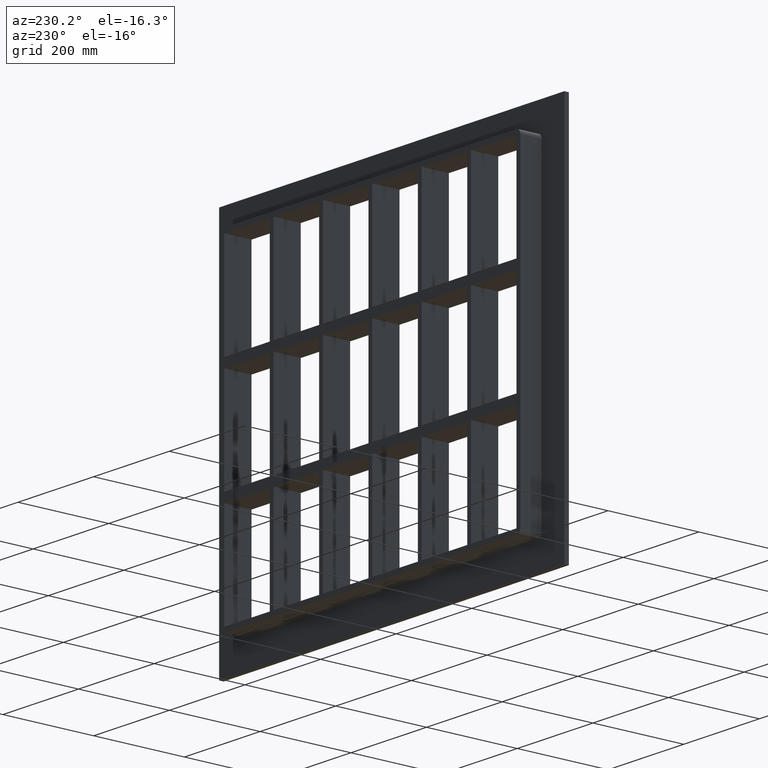
[diagram: clean part render]
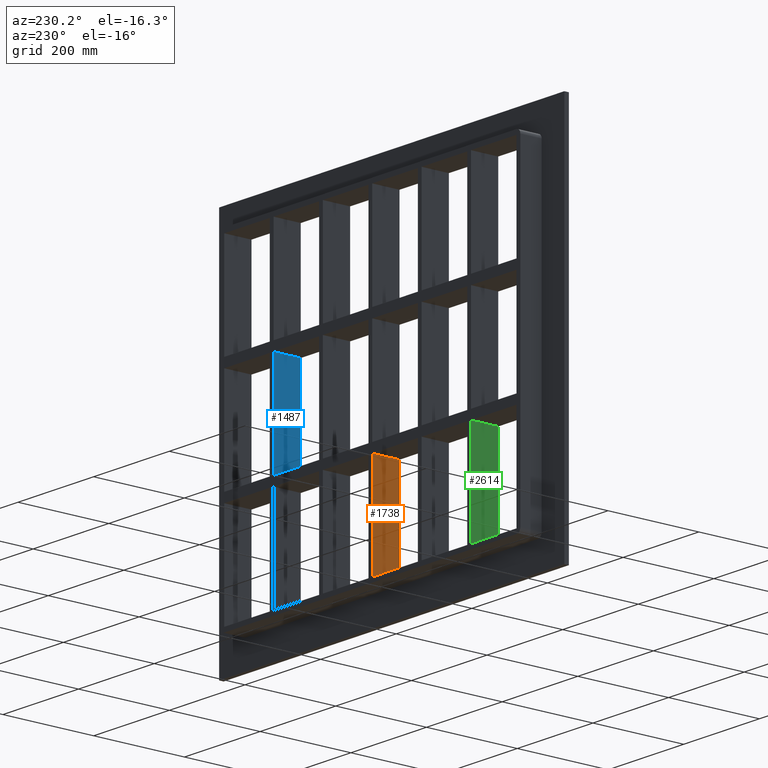
[diagram: same view with three faces highlighted in distinct colors, each labeled with its STEP entity id]
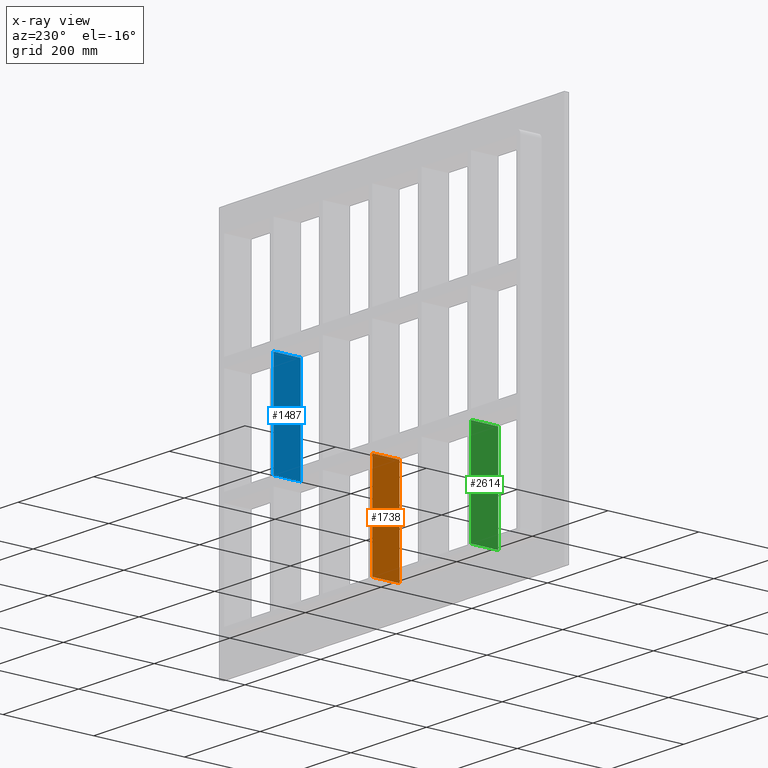
[diagram: x-ray of the same camera — body ghosted, the three highlighted faces saturated]
A machine part, auxiliary view with three faces highlighted in distinct colors.
The next image is the same camera in x-ray (body ghosted, the three faces saturated) — at least one of them is partly hidden behind the body in this view.
Their STEP definitions:

[orange] entity #1738 — the highlighted planar face has unit normal (-1, 0, 0).
#1316=CARTESIAN_POINT('',(-5.00000000000135,57.0,-347.0));
#1317=VERTEX_POINT('',#1316);
#1318=CARTESIAN_POINT('',(-5.000000000001372,57.0,-129.00000000000941));
#1319=VERTEX_POINT('',#1318);
#1320=CARTESIAN_POINT('',(-5.00000000000135,57.0,-347.0));
#1321=DIRECTION('',(0.0,0.0,1.0));
#1322=VECTOR('',#1321,217.99999999999062);
#1323=LINE('',#1320,#1322);
#1324=EDGE_CURVE('',#1317,#1319,#1323,.T.);
#1708=CARTESIAN_POINT('',(-5.00000000000135,-3.0,-347.0));
#1709=DIRECTION('',(-1.0,0.0,0.0));
#1710=DIRECTION('',(0.0,0.0,1.0));
#1711=AXIS2_PLACEMENT_3D('',#1708,#1709,#1710);
#1712=PLANE('',#1711);
#1713=CARTESIAN_POINT('',(-5.000000000001372,-3.0,-129.00000000000941));
#1714=VERTEX_POINT('',#1713);
#1715=CARTESIAN_POINT('',(-5.000000000001361,57.0,-129.00000000000941));
#1716=DIRECTION('',(0.0,-1.0,0.0));
#1717=VECTOR('',#1716,60.0);
#1718=LINE('',#1715,#1717);
#1719=EDGE_CURVE('',#1319,#1714,#1718,.T.);
#1720=ORIENTED_EDGE('',*,*,#1719,.F.);
#1721=ORIENTED_EDGE('',*,*,#1324,.F.);
#1722=CARTESIAN_POINT('',(-5.00000000000135,-3.0,-347.0));
#1723=VERTEX_POINT('',#1722);
#1724=CARTESIAN_POINT('',(-5.00000000000135,-3.0,-347.0));
#1725=DIRECTION('',(0.0,1.0,0.0));
#1726=VECTOR('',#1725,60.000000000000007);
#1727=LINE('',#1724,#1726);
#1728=EDGE_CURVE('',#1723,#1317,#1727,.T.);
#1729=ORIENTED_EDGE('',*,*,#1728,.F.);
#1730=CARTESIAN_POINT('',(-5.00000000000135,-3.0,-347.0));
#1731=DIRECTION('',(0.0,0.0,1.0));
#1732=VECTOR('',#1731,217.99999999999062);
#1733=LINE('',#1730,#1732);
#1734=EDGE_CURVE('',#1723,#1714,#1733,.T.);
#1735=ORIENTED_EDGE('',*,*,#1734,.T.);
#1736=EDGE_LOOP('',(#1720,#1721,#1729,#1735));
#1737=FACE_OUTER_BOUND('',#1736,.T.);
#1738=ADVANCED_FACE('',(#1737),#1712,.T.);

[blue] entity #1487 — the highlighted planar face has unit normal (-1, 0, 0).
#273=CARTESIAN_POINT('',(255.99999999999866,-3.0,108.99999999999061));
#274=VERTEX_POINT('',#273);
#275=CARTESIAN_POINT('',(255.99999999999866,57.0,108.99999999999061));
#276=VERTEX_POINT('',#275);
#277=CARTESIAN_POINT('',(255.99999999999866,-3.0,108.99999999999061));
#278=DIRECTION('',(0.0,1.0,0.0));
#279=VECTOR('',#278,60.0);
#280=LINE('',#277,#279);
#281=EDGE_CURVE('',#274,#276,#280,.T.);
#1157=CARTESIAN_POINT('',(255.99999999999866,57.0,-109.00000000000006));
#1158=VERTEX_POINT('',#1157);
#1165=CARTESIAN_POINT('',(255.99999999999866,57.0,-109.00000000000003));
#1166=DIRECTION('',(0.0,0.0,1.0));
#1167=VECTOR('',#1166,217.99999999999065);
#1168=LINE('',#1165,#1167);
#1169=EDGE_CURVE('',#1158,#276,#1168,.T.);
#1464=CARTESIAN_POINT('',(255.99999999999869,-3.0,-347.0));
#1465=DIRECTION('',(-1.0,0.0,0.0));
#1466=DIRECTION('',(0.0,0.0,1.0));
#1467=AXIS2_PLACEMENT_3D('',#1464,#1465,#1466);
#1468=PLANE('',#1467);
#1469=ORIENTED_EDGE('',*,*,#281,.T.);
#1470=ORIENTED_EDGE('',*,*,#1169,.F.);
#1471=CARTESIAN_POINT('',(255.99999999999866,-3.0,-109.00000000000006));
#1472=VERTEX_POINT('',#1471);
#1473=CARTESIAN_POINT('',(255.99999999999875,-3.0,-109.00000000000006));
#1474=DIRECTION('',(0.0,1.0,0.0));
#1475=VECTOR('',#1474,60.0);
#1476=LINE('',#1473,#1475);
#1477=EDGE_CURVE('',#1472,#1158,#1476,.T.);
#1478=ORIENTED_EDGE('',*,*,#1477,.F.);
#1479=CARTESIAN_POINT('',(255.99999999999866,-3.0,-109.00000000000003));
#1480=DIRECTION('',(0.0,0.0,1.0));
#1481=VECTOR('',#1480,217.99999999999065);
#1482=LINE('',#1479,#1481);
#1483=EDGE_CURVE('',#1472,#274,#1482,.T.);
#1484=ORIENTED_EDGE('',*,*,#1483,.T.);
#1485=EDGE_LOOP('',(#1469,#1470,#1478,#1484));
#1486=FACE_OUTER_BOUND('',#1485,.T.);
#1487=ADVANCED_FACE('',(#1486),#1468,.T.);

[green] entity #2614 — the highlighted planar face has unit normal (-1, 0, 0).
#1258=CARTESIAN_POINT('',(-266.00000000000136,57.0,-347.0));
#1259=VERTEX_POINT('',#1258);
#1266=CARTESIAN_POINT('',(-266.00000000000136,57.0,-129.00000000000944));
#1267=VERTEX_POINT('',#1266);
#1268=CARTESIAN_POINT('',(-266.00000000000136,57.0,-347.0));
#1269=DIRECTION('',(0.0,0.0,1.0));
#1270=VECTOR('',#1269,217.99999999999059);
#1271=LINE('',#1268,#1270);
#1272=EDGE_CURVE('',#1259,#1267,#1271,.T.);
#2293=CARTESIAN_POINT('',(-266.00000000000136,-3.0,-129.00000000000944));
#2294=VERTEX_POINT('',#2293);
#2303=CARTESIAN_POINT('',(-266.00000000000136,-3.0,-347.0));
#2304=VERTEX_POINT('',#2303);
#2305=CARTESIAN_POINT('',(-266.00000000000136,-3.0,-347.0));
#2306=DIRECTION('',(0.0,0.0,1.0));
#2307=VECTOR('',#2306,217.99999999999059);
#2308=LINE('',#2305,#2307);
#2309=EDGE_CURVE('',#2304,#2294,#2308,.T.);
#2516=CARTESIAN_POINT('',(-266.00000000000136,-3.0,-129.00000000000941));
#2517=DIRECTION('',(0.0,1.0,0.0));
#2518=VECTOR('',#2517,60.0);
#2519=LINE('',#2516,#2518);
#2520=EDGE_CURVE('',#2294,#1267,#2519,.T.);
#2598=CARTESIAN_POINT('',(-266.00000000000136,-3.0,-347.0));
#2599=DIRECTION('',(-1.0,0.0,0.0));
#2600=DIRECTION('',(0.0,0.0,1.0));
#2601=AXIS2_PLACEMENT_3D('',#2598,#2599,#2600);
#2602=PLANE('',#2601);
#2603=ORIENTED_EDGE('',*,*,#2520,.T.);
#2604=ORIENTED_EDGE('',*,*,#1272,.F.);
#2605=CARTESIAN_POINT('',(-266.00000000000136,-3.0,-347.0));
#2606=DIRECTION('',(0.0,1.0,0.0));
#2607=VECTOR('',#2606,60.000000000000007);
#2608=LINE('',#2605,#2607);
#2609=EDGE_CURVE('',#2304,#1259,#2608,.T.);
#2610=ORIENTED_EDGE('',*,*,#2609,.F.);
#2611=ORIENTED_EDGE('',*,*,#2309,.T.);
#2612=EDGE_LOOP('',(#2603,#2604,#2610,#2611));
#2613=FACE_OUTER_BOUND('',#2612,.T.);
#2614=ADVANCED_FACE('',(#2613),#2602,.T.);